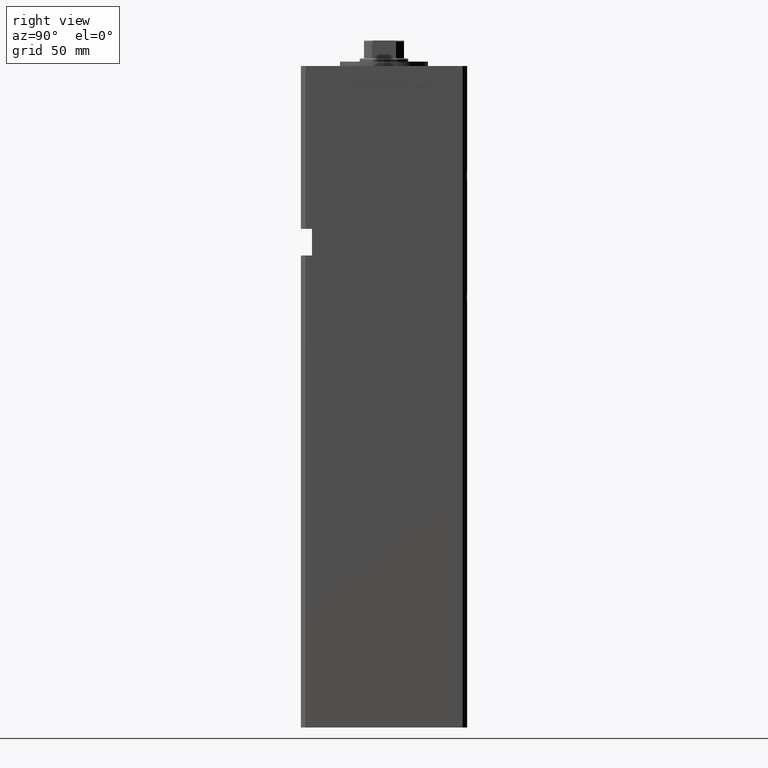
[diagram: clean part render]
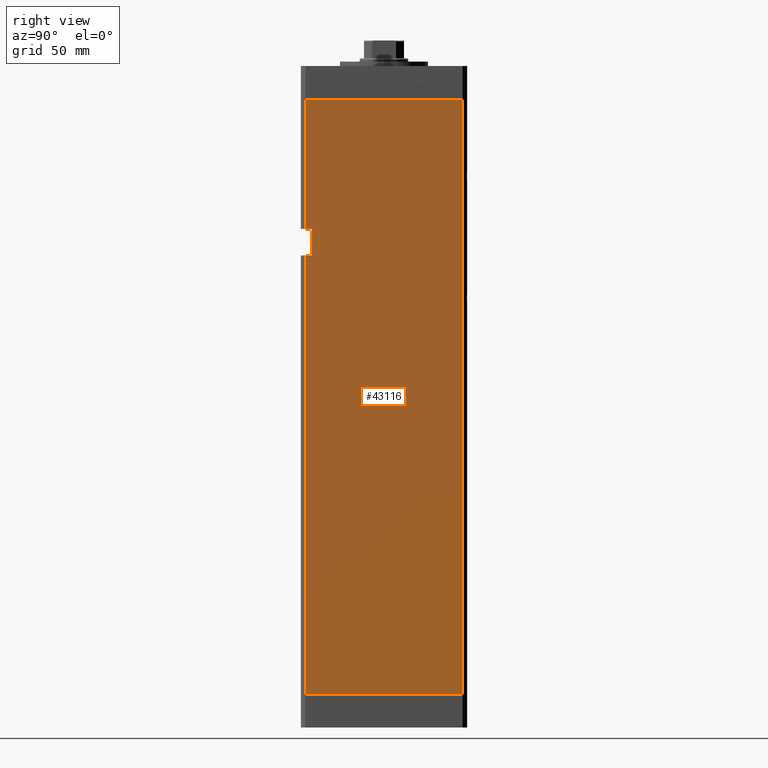
[diagram: same view with one face highlighted and labeled with its STEP entity id]
A machine part, right view. The second image highlights one B-rep face of the part: STEP entity #43116.
In plain terms, the highlighted planar face has unit normal (1, -0, 0).
Its self-contained STEP definition (entity closure, byte-faithful):
#980 = LINE ( 'NONE', #17900, #19540 ) ;
#2131 = EDGE_CURVE ( 'NONE', #29959, #2725, #41714, .T. ) ;
#2621 = CARTESIAN_POINT ( 'NONE',  ( 42.50000000000001421, 35.50000000000000711, 0.000000000000000000 ) ) ;
#2725 = VERTEX_POINT ( 'NONE', #41592 ) ;
#3153 = CARTESIAN_POINT ( 'NONE',  ( 42.49999999999998579, -32.50000000000000711, 210.0000000000000284 ) ) ;
#3816 = VECTOR ( 'NONE', #48042, 1000.000000000000000 ) ;
#4701 = CARTESIAN_POINT ( 'NONE',  ( 42.49999999999998579, -35.50000000000000711, 268.5000000000000000 ) ) ;
#4714 = LINE ( 'NONE', #11718, #13979 ) ;
#5708 = EDGE_LOOP ( 'NONE', ( #21434, #28340, #14145, #38163, #19996, #9790, #11606, #30783 ) ) ;
#7816 = LINE ( 'NONE', #40867, #44277 ) ;
#7951 = DIRECTION ( 'NONE',  ( -3.909236002201255146E-16, -1.000000000000000000, 0.000000000000000000 ) ) ;
#8575 = CARTESIAN_POINT ( 'NONE',  ( 42.50000000000001421, 35.50000000000000711, 0.000000000000000000 ) ) ;
#8885 = VERTEX_POINT ( 'NONE', #3153 ) ;
#9790 = ORIENTED_EDGE ( 'NONE', *, *, #47748, .T. ) ;
#11399 = FACE_OUTER_BOUND ( 'NONE', #5708, .T. ) ;
#11556 = VECTOR ( 'NONE', #53007, 1000.000000000000000 ) ;
#11606 = ORIENTED_EDGE ( 'NONE', *, *, #39957, .F. ) ;
#11718 = CARTESIAN_POINT ( 'NONE',  ( 42.50000000000001421, 35.50000000000000711, 268.5000000000000000 ) ) ;
#13979 = VECTOR ( 'NONE', #7951, 1000.000000000000000 ) ;
#14145 = ORIENTED_EDGE ( 'NONE', *, *, #40284, .F. ) ;
#14419 = CARTESIAN_POINT ( 'NONE',  ( 42.49999999999998579, -35.50000000000000711, 210.0000000000000284 ) ) ;
#14420 = LINE ( 'NONE', #2621, #22849 ) ;
#15256 = CARTESIAN_POINT ( 'NONE',  ( 42.50000000000001421, 35.50000000000000711, 268.5000000000000000 ) ) ;
#15926 = EDGE_CURVE ( 'NONE', #22402, #29959, #38857, .T. ) ;
#17900 = CARTESIAN_POINT ( 'NONE',  ( 42.49999999999998579, -35.50000000000000711, 268.5000000000000000 ) ) ;
#18449 = CARTESIAN_POINT ( 'NONE',  ( 42.49999999999998579, -32.50000000000000711, 198.0000000000000000 ) ) ;
#19540 = VECTOR ( 'NONE', #30277, 1000.000000000000000 ) ;
#19707 = VECTOR ( 'NONE', #21560, 1000.000000000000000 ) ;
#19996 = ORIENTED_EDGE ( 'NONE', *, *, #32044, .T. ) ;
#20087 = EDGE_CURVE ( 'NONE', #39721, #25902, #52078, .T. ) ;
#21052 = CARTESIAN_POINT ( 'NONE',  ( 42.49999999999998579, -35.50000000000000711, 268.5000000000000000 ) ) ;
#21434 = ORIENTED_EDGE ( 'NONE', *, *, #15926, .T. ) ;
#21560 = DIRECTION ( 'NONE',  ( -0.000000000000000000, -0.000000000000000000, -1.000000000000000000 ) ) ;
#22402 = VERTEX_POINT ( 'NONE', #35974 ) ;
#22849 = VECTOR ( 'NONE', #27600, 1000.000000000000000 ) ;
#23432 = VECTOR ( 'NONE', #47186, 1000.000000000000000 ) ;
#24232 = DIRECTION ( 'NONE',  ( -0.000000000000000000, -1.000000000000000000, -0.000000000000000000 ) ) ;
#25902 = VERTEX_POINT ( 'NONE', #8575 ) ;
#27600 = DIRECTION ( 'NONE',  ( -3.909236002201255146E-16, -1.000000000000000000, 0.000000000000000000 ) ) ;
#27811 = PLANE ( 'NONE',  #51250 ) ;
#28340 = ORIENTED_EDGE ( 'NONE', *, *, #2131, .T. ) ;
#29650 = CARTESIAN_POINT ( 'NONE',  ( 42.50000000000001421, 35.50000000000000711, 268.5000000000000000 ) ) ;
#29959 = VERTEX_POINT ( 'NONE', #43268 ) ;
#30277 = DIRECTION ( 'NONE',  ( -0.000000000000000000, -0.000000000000000000, -1.000000000000000000 ) ) ;
#30783 = ORIENTED_EDGE ( 'NONE', *, *, #30936, .F. ) ;
#30936 = EDGE_CURVE ( 'NONE', #22402, #8885, #39845, .T. ) ;
#31318 = CARTESIAN_POINT ( 'NONE',  ( 42.50000000000001421, 35.50000000000000711, 268.5000000000000000 ) ) ;
#32044 = EDGE_CURVE ( 'NONE', #39721, #50758, #4714, .T. ) ;
#35974 = CARTESIAN_POINT ( 'NONE',  ( 42.49999999999998579, -32.50000000000000000, 198.0000000000000000 ) ) ;
#38163 = ORIENTED_EDGE ( 'NONE', *, *, #20087, .F. ) ;
#38857 = LINE ( 'NONE', #18449, #23432 ) ;
#39721 = VERTEX_POINT ( 'NONE', #29650 ) ;
#39845 = LINE ( 'NONE', #48175, #11556 ) ;
#39957 = EDGE_CURVE ( 'NONE', #8885, #51962, #7816, .T. ) ;
#40284 = EDGE_CURVE ( 'NONE', #25902, #2725, #14420, .T. ) ;
#40867 = CARTESIAN_POINT ( 'NONE',  ( 42.49999999999998579, -32.50000000000000711, 210.0000000000000284 ) ) ;
#41592 = CARTESIAN_POINT ( 'NONE',  ( 42.49999999999998579, -35.50000000000000711, 0.000000000000000000 ) ) ;
#41714 = LINE ( 'NONE', #21052, #19707 ) ;
#43116 = ADVANCED_FACE ( 'NONE', ( #11399 ), #27811, .T. ) ;
#43268 = CARTESIAN_POINT ( 'NONE',  ( 42.49999999999998579, -35.50000000000000711, 198.0000000000000000 ) ) ;
#44195 = DIRECTION ( 'NONE',  ( 1.000000000000000000, -3.909236002201255146E-16, 0.000000000000000000 ) ) ;
#44277 = VECTOR ( 'NONE', #24232, 1000.000000000000000 ) ;
#47186 = DIRECTION ( 'NONE',  ( -0.000000000000000000, -1.000000000000000000, -0.000000000000000000 ) ) ;
#47748 = EDGE_CURVE ( 'NONE', #50758, #51962, #980, .T. ) ;
#48042 = DIRECTION ( 'NONE',  ( -0.000000000000000000, -0.000000000000000000, -1.000000000000000000 ) ) ;
#48175 = CARTESIAN_POINT ( 'NONE',  ( 42.49999999999998579, -32.50000000000000711, 210.0000000000000284 ) ) ;
#48490 = DIRECTION ( 'NONE',  ( 3.909236002201255146E-16, 1.000000000000000000, 0.000000000000000000 ) ) ;
#50758 = VERTEX_POINT ( 'NONE', #4701 ) ;
#51250 = AXIS2_PLACEMENT_3D ( 'NONE', #31318, #44195, #48490 ) ;
#51962 = VERTEX_POINT ( 'NONE', #14419 ) ;
#52078 = LINE ( 'NONE', #15256, #3816 ) ;
#53007 = DIRECTION ( 'NONE',  ( -0.000000000000000000, -0.000000000000000000, 1.000000000000000000 ) ) ;